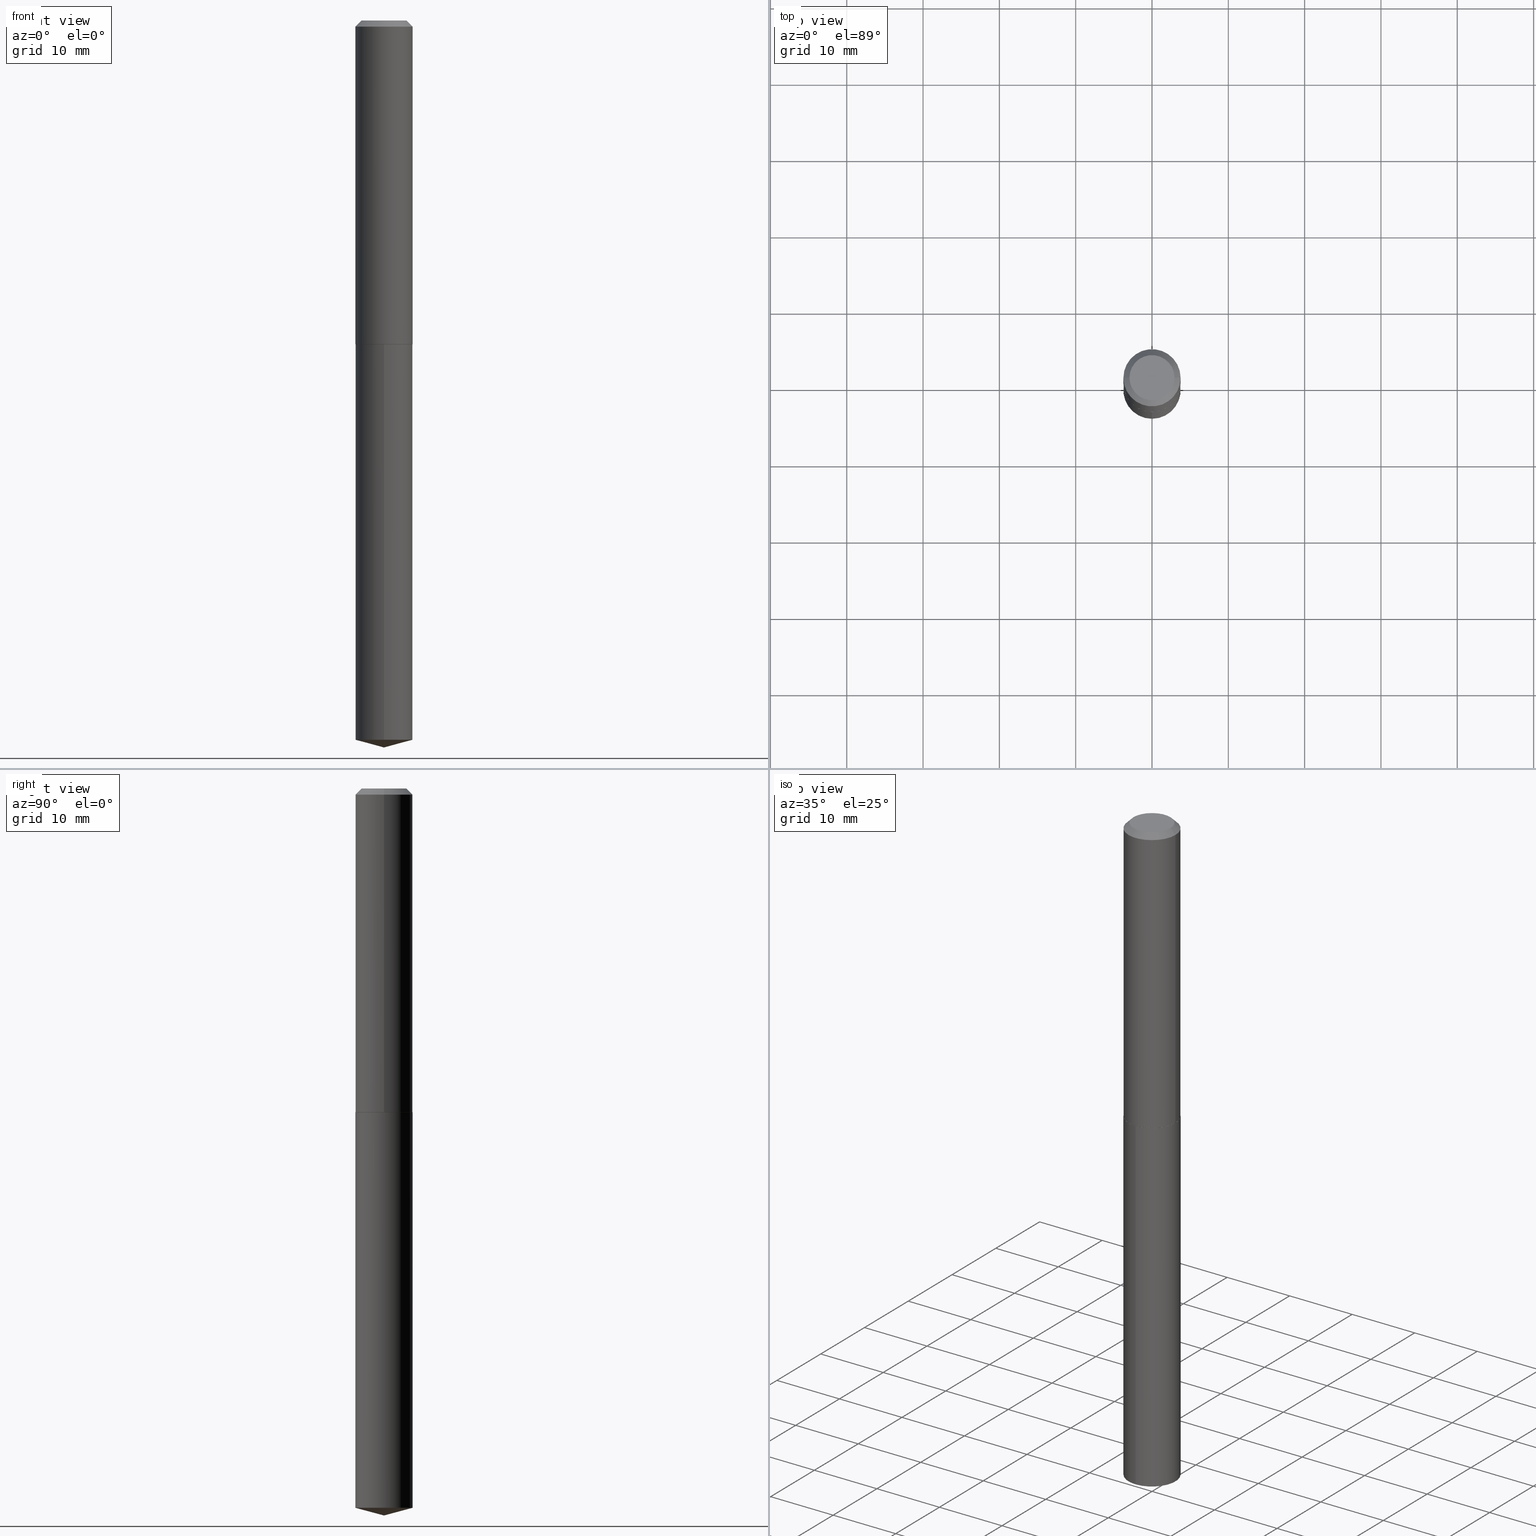
[diagram: canonical four-view strip — front | top / right | iso, engineering-drawing reading convention]
A machine part, canonical four-view strip (front | top / right | iso — engineering-drawing reading convention). The complete STEP part file that produces these views, byte-faithful:
ISO-10303-21;
HEADER;
FILE_DESCRIPTION (( 'STEP AP203' ),
    '1' );
FILE_NAME ('53213.STEP',
    '2024-04-22T19:26:09',
    ( '' ),
    ( '' ),
    'SwSTEP 2.0',
    'SolidWorks 2023',
    '' );
FILE_SCHEMA (( 'CONFIG_CONTROL_DESIGN' ));
ENDSEC;

DATA;
#1 = CARTESIAN_POINT ( 'NONE',  ( 9.073905152800398852E-29, -1.295499392540462134E-14, -3.710477494116410480 ) ) ;
#2 = ORIENTED_EDGE ( 'NONE', *, *, #236, .F. ) ;
#3 = CARTESIAN_POINT ( 'NONE',  ( 0.000000000000000000, 0.000000000000000000, 0.000000000000000000 ) ) ;
#4 = CARTESIAN_POINT ( 'NONE',  ( -0.1475000000000002143, -4.780977559952484031E-15, -1.669500000000000428 ) ) ;
#5 = VERTEX_POINT ( 'NONE', #71 ) ;
#6 = PERSON_AND_ORGANIZATION ( #185, #101 ) ;
#7 = VECTOR ( 'NONE', #368, 39.37007874015748143 ) ;
#8 = CLOSED_SHELL ( 'NONE', ( #23, #306, #95, #163, #140 ) ) ;
#9 = CARTESIAN_POINT ( 'NONE',  ( 0.1162499999999999922, -9.592825693755452120E-16, 3.061616997930326664E-19 ) ) ;
#10 = ADVANCED_FACE ( 'NONE', ( #261 ), #359, .T. ) ;
#11 = FACE_OUTER_BOUND ( 'NONE', #60, .T. ) ;
#12 = SECURITY_CLASSIFICATION_LEVEL ( 'unclassified' ) ;
#13 = LINE ( 'NONE', #69, #136 ) ;
#14 = DIRECTION ( 'NONE',  ( -2.438088387897960049E-29, 3.491481338843145188E-15, 1.000000000000000000 ) ) ;
#15 = CC_DESIGN_PERSON_AND_ORGANIZATION_ASSIGNMENT ( #6, #107, ( #173 ) ) ;
#16 = DESIGN_CONTEXT ( 'detailed design', #145, 'design' ) ;
#17 = CARTESIAN_POINT ( 'NONE',  ( 4.082710171926086683E-29, -5.829028095198632341E-15, -1.669500000000000428 ) ) ;
#18 = DIRECTION ( 'NONE',  ( -2.445492420700299063E-29, 3.491447521513378388E-15, 1.000000000000000000 ) ) ;
#19 = DIRECTION ( 'NONE',  ( -2.445468806185136877E-29, 3.491481338843145188E-15, 1.000000000000000000 ) ) ;
#20 = VECTOR ( 'NONE', #203, 39.37007874015748143 ) ;
#21 = FACE_OUTER_BOUND ( 'NONE', #265, .T. ) ;
#22 = SECURITY_CLASSIFICATION ( '', '', #12 ) ;
#23 = ADVANCED_FACE ( 'NONE', ( #267 ), #134, .T. ) ;
#24 = DIRECTION ( 'NONE',  ( -2.445492420700299063E-29, 3.491447521513378388E-15, 1.000000000000000000 ) ) ;
#25 = CARTESIAN_POINT ( 'NONE',  ( 0.1470000000000002416, -6.857269349487938175E-15, -1.670000000000000595 ) ) ;
#26 = DIRECTION ( 'NONE',  ( -6.982962677686265922E-15, -1.000000000000000000, 3.704200669375272254E-15 ) ) ;
#27 = CIRCLE ( 'NONE', #184, 0.1162499999999999922 ) ;
#28 = PERSON_AND_ORGANIZATION_ROLE ( 'design_owner' ) ;
#29 = EDGE_CURVE ( 'NONE', #5, #380, #103, .T. ) ;
#30 = DIRECTION ( 'NONE',  ( -2.445468806185136597E-29, 3.491481338843145583E-15, 1.000000000000000000 ) ) ;
#31 = ORIENTED_EDGE ( 'NONE', *, *, #369, .T. ) ;
#32 = DIRECTION ( 'NONE',  ( -2.445468806185136597E-29, 3.491481338843145583E-15, 1.000000000000000000 ) ) ;
#33 = LOCAL_TIME ( 15, 26, 9.000000000000000000, #240 ) ;
#34 = ADVANCED_FACE ( 'NONE', ( #97 ), #238, .T. ) ;
#35 = ORIENTED_EDGE ( 'NONE', *, *, #301, .T. ) ;
#36 = ORIENTED_EDGE ( 'NONE', *, *, #353, .F. ) ;
#37 = VERTEX_POINT ( 'NONE', #289 ) ;
#38 = CC_DESIGN_APPROVAL ( #119, ( #312 ) ) ;
#39 = DIRECTION ( 'NONE',  ( 2.438088387897960049E-29, -3.491481338843145188E-15, -1.000000000000000000 ) ) ;
#40 = PERSON_AND_ORGANIZATION ( #185, #101 ) ;
#41 = LINE ( 'NONE', #116, #382 ) ;
#42 = ADVANCED_FACE ( 'NONE', ( #235 ), #228, .F. ) ;
#43 = PERSON_AND_ORGANIZATION_ROLE ( 'classification_officer' ) ;
#44 = ORIENTED_EDGE ( 'NONE', *, *, #112, .T. ) ;
#45 = VERTEX_POINT ( 'NONE', #345 ) ;
#46 = DATE_AND_TIME ( #264, #33 ) ;
#47 = ADVANCED_FACE ( 'NONE', ( #139 ), #339, .F. ) ;
#48 = APPROVAL_PERSON_ORGANIZATION ( #229, #259, #317 ) ;
#49 = CARTESIAN_POINT ( 'NONE',  ( -0.1475000000000001033, 1.048050535246148508E-15, -7.255429258125991787E-30 ) ) ;
#50 = DIRECTION ( 'NONE',  ( -2.445468806185136597E-29, 3.491481338843145583E-15, 1.000000000000000000 ) ) ;
#51 = APPROVAL_STATUS ( 'not_yet_approved' ) ;
#52 = CARTESIAN_POINT ( 'NONE',  ( 4.083932906329178363E-29, -5.830773835868053845E-15, -1.670000000000000151 ) ) ;
#53 = CIRCLE ( 'NONE', #150, 0.1474999999999999922 ) ;
#54 = DIRECTION ( 'NONE',  ( 6.982962677686265922E-15, 1.000000000000000000, -3.491447521513378388E-15 ) ) ;
#55 = DIRECTION ( 'NONE',  ( 0.000000000000000000, 0.000000000000000000, 1.000000000000000000 ) ) ;
#56 = CARTESIAN_POINT ( 'NONE',  ( 4.082710171926086683E-29, -5.829028095198632341E-15, -1.669500000000000428 ) ) ;
#57 = PRODUCT_RELATED_PRODUCT_CATEGORY ( 'detail', '', ( #275 ) ) ;
#58 = CIRCLE ( 'NONE', #108, 0.1470000000000002416 ) ;
#59 = CARTESIAN_POINT ( 'NONE',  ( 0.1475000000000002143, -6.859015090157358101E-15, -1.669500000000000428 ) ) ;
#60 = EDGE_LOOP ( 'NONE', ( #288, #171, #161, #337 ) ) ;
#61 = ADVANCED_FACE ( 'NONE', ( #11 ), #172, .T. ) ;
#62 = FACE_OUTER_BOUND ( 'NONE', #243, .T. ) ;
#63 = EDGE_LOOP ( 'NONE', ( #364, #279, #96, #342 ) ) ;
#64 = VECTOR ( 'NONE', #230, 39.37007874015748143 ) ;
#65 = EDGE_LOOP ( 'NONE', ( #350, #278, #141, #258 ) ) ;
#66 = EDGE_CURVE ( 'NONE', #387, #72, #231, .T. ) ;
#67 = DIRECTION ( 'NONE',  ( 1.000000000000000000, -6.982962677686265922E-15, 4.876176775795935793E-29 ) ) ;
#68 = CIRCLE ( 'NONE', #239, 0.1475000000000002143 ) ;
#69 = CARTESIAN_POINT ( 'NONE',  ( 9.170517705145478569E-29, -1.309304115555659348E-14, -3.750000000000000000 ) ) ;
#70 = CARTESIAN_POINT ( 'NONE',  ( 1.916750892039908072E-29, -8.934301828670308396E-15, -1.670000000000000595 ) ) ;
#71 = CARTESIAN_POINT ( 'NONE',  ( -0.1470000000000002416, -4.783626787126595232E-15, -1.670000000000000595 ) ) ;
#72 = VERTEX_POINT ( 'NONE', #311 ) ;
#73 = AXIS2_PLACEMENT_3D ( 'NONE', #294, #272, #250 ) ;
#74 = LINE ( 'NONE', #241, #341 ) ;
#75 = CARTESIAN_POINT ( 'NONE',  ( 4.083932906329178363E-29, -5.830773835868053845E-15, -1.670000000000000151 ) ) ;
#76 = ORIENTED_EDGE ( 'NONE', *, *, #112, .F. ) ;
#77 = SHAPE_DEFINITION_REPRESENTATION ( #386, #338 ) ;
#78 = DIRECTION ( 'NONE',  ( -6.745023994389845444E-15, -0.9659258262890685343, 0.2588190451025198513 ) ) ;
#79 = EDGE_CURVE ( 'NONE', #123, #375, #41, .T. ) ;
#80 = CARTESIAN_POINT ( 'NONE',  ( -7.487088864773370432E-48, 1.068957861474250935E-33, 3.061616997868404646E-19 ) ) ;
#81 = ORIENTED_EDGE ( 'NONE', *, *, #186, .T. ) ;
#82 = DIRECTION ( 'NONE',  ( 2.445492420700298503E-29, -3.491447521513378388E-15, -1.000000000000000000 ) ) ;
#83 = CC_DESIGN_SECURITY_CLASSIFICATION ( #22, ( #173 ) ) ;
#84 = EDGE_CURVE ( 'NONE', #37, #375, #120, .T. ) ;
#85 = CYLINDRICAL_SURFACE ( 'NONE', #334, 0.1474999999999999922 ) ;
#86 = CC_DESIGN_DATE_AND_TIME_ASSIGNMENT ( #313, #170, ( #312 ) ) ;
#87 = DIRECTION ( 'NONE',  ( -6.982962677686265922E-15, -1.000000000000000000, 3.704200669375272254E-15 ) ) ;
#88 = PERSON_AND_ORGANIZATION ( #185, #101 ) ;
#89 = AXIS2_PLACEMENT_3D ( 'NONE', #191, #223, #361 ) ;
#90 = DIRECTION ( 'NONE',  ( -2.445492420700299063E-29, 3.491447521513378388E-15, 1.000000000000000000 ) ) ;
#91 = ORIENTED_EDGE ( 'NONE', *, *, #132, .T. ) ;
#92 = VERTEX_POINT ( 'NONE', #25 ) ;
#93 = ORIENTED_EDGE ( 'NONE', *, *, #84, .F. ) ;
#94 = AXIS2_PLACEMENT_3D ( 'NONE', #162, #32, #363 ) ;
#95 = ADVANCED_FACE ( 'NONE', ( #378 ), #232, .T. ) ;
#96 = ORIENTED_EDGE ( 'NONE', *, *, #353, .T. ) ;
#97 = FACE_OUTER_BOUND ( 'NONE', #257, .T. ) ;
#98 = MANIFOLD_SOLID_BREP ( 'Body-Move/Copy2[1]', #8 ) ;
#99 = DATE_TIME_ROLE ( 'classification_date' ) ;
#100 = DIRECTION ( 'NONE',  ( 1.000000000000000000, -6.982962677686265922E-15, 0.000000000000000000 ) ) ;
#101 = ORGANIZATION ( 'UNSPECIFIED', 'UNSPECIFIED', '' ) ;
#102 = DIRECTION ( 'NONE',  ( 1.000000000000000000, -6.982962677686265922E-15, 0.000000000000000000 ) ) ;
#103 = LINE ( 'NONE', #4, #7 ) ;
#104 = EDGE_LOOP ( 'NONE', ( #357, #117, #81, #251 ) ) ;
#105 = DATE_AND_TIME ( #131, #210 ) ;
#106 = CARTESIAN_POINT ( 'NONE',  ( 0.000000000000000000, 0.000000000000000000, 0.000000000000000000 ) ) ;
#107 = PERSON_AND_ORGANIZATION_ROLE ( 'creator' ) ;
#108 = AXIS2_PLACEMENT_3D ( 'NONE', #325, #247, #152 ) ;
#109 = LINE ( 'NONE', #205, #64 ) ;
#110 = CARTESIAN_POINT ( 'NONE',  ( 4.083932906329178363E-29, -5.830773835868053845E-15, -1.670000000000000151 ) ) ;
#111 = CARTESIAN_POINT ( 'NONE',  ( 9.073905152800398852E-29, -1.295499392540462134E-14, -3.710477494116410480 ) ) ;
#112 = EDGE_CURVE ( 'NONE', #375, #37, #53, .T. ) ;
#113 = LOCAL_TIME ( 15, 26, 9.000000000000000000, #142 ) ;
#114 = EDGE_CURVE ( 'NONE', #380, #216, #255, .T. ) ;
#115 =( CONVERSION_BASED_UNIT ( 'INCH', #295 ) LENGTH_UNIT ( ) NAMED_UNIT ( #299 ) );
#116 = CARTESIAN_POINT ( 'NONE',  ( 1.048050535246188542E-15, 0.1474999999999941636, -1.670000000000000817 ) ) ;
#117 = ORIENTED_EDGE ( 'NONE', *, *, #159, .F. ) ;
#118 = APPLICATION_CONTEXT ( 'configuration controlled 3d designs of mechanical parts and assemblies' ) ;
#119 = APPROVAL ( #217, 'UNSPECIFIED' ) ;
#120 = CIRCLE ( 'NONE', #390, 0.1474999999999999922 ) ;
#121 = VECTOR ( 'NONE', #356, 39.37007874015748143 ) ;
#122 = APPROVAL_ROLE ( '' ) ;
#123 = VERTEX_POINT ( 'NONE', #323 ) ;
#124 = DIRECTION ( 'NONE',  ( -2.445492420700299063E-29, 3.491447521513378388E-15, 1.000000000000000000 ) ) ;
#125 = VERTEX_POINT ( 'NONE', #209 ) ;
#126 = CC_DESIGN_PERSON_AND_ORGANIZATION_ASSIGNMENT ( #351, #346, ( #312 ) ) ;
#127 = AXIS2_PLACEMENT_3D ( 'NONE', #80, #149, #148 ) ;
#128 = DIRECTION ( 'NONE',  ( -2.445468806185136597E-29, 3.491481338843145583E-15, 1.000000000000000000 ) ) ;
#129 = ORIENTED_EDGE ( 'NONE', *, *, #373, .T. ) ;
#130 = CARTESIAN_POINT ( 'NONE',  ( 7.642090019328604414E-31, -1.091087918388490513E-16, -0.03125000000000021511 ) ) ;
#131 = CALENDAR_DATE ( 2024, 22, 4 ) ;
#132 = EDGE_CURVE ( 'NONE', #45, #123, #348, .T. ) ;
#133 = DIRECTION ( 'NONE',  ( 6.863315791527699781E-15, 0.9659258262890704216, 0.2588190451025130789 ) ) ;
#134 = CYLINDRICAL_SURFACE ( 'NONE', #190, 0.1474999999999999922 ) ;
#135 = ORIENTED_EDGE ( 'NONE', *, *, #333, .F. ) ;
#136 = VECTOR ( 'NONE', #78, 39.37007874015748143 ) ;
#137 = DIRECTION ( 'NONE',  ( 1.000000000000000000, -6.982962677686265922E-15, 0.000000000000000000 ) ) ;
#138 = CALENDAR_DATE ( 2024, 22, 4 ) ;
#139 = FACE_OUTER_BOUND ( 'NONE', #270, .T. ) ;
#140 = ADVANCED_FACE ( 'NONE', ( #21 ), #385, .F. ) ;
#141 = ORIENTED_EDGE ( 'NONE', *, *, #189, .F. ) ;
#142 = COORDINATED_UNIVERSAL_TIME_OFFSET ( 5, 0, .BEHIND. ) ;
#143 = DIRECTION ( 'NONE',  ( -2.445468806185136597E-29, 3.491481338843145583E-15, 1.000000000000000000 ) ) ;
#144 = CARTESIAN_POINT ( 'NONE',  ( -8.710867202004330630E-28, 1.243655791584935141E-13, 35.62007874015748143 ) ) ;
#145 = APPLICATION_CONTEXT ( 'configuration controlled 3d designs of mechanical parts and assemblies' ) ;
#146 = VECTOR ( 'NONE', #90, 39.37007874015748143 ) ;
#147 =( NAMED_UNIT ( * ) SI_UNIT ( $, .STERADIAN. ) SOLID_ANGLE_UNIT ( ) );
#148 = DIRECTION ( 'NONE',  ( 1.000000000000000000, -6.982962677686266711E-15, 4.876177086992617819E-29 ) ) ;
#149 = DIRECTION ( 'NONE',  ( -2.445468806185136597E-29, 3.491481338843145583E-15, 1.000000000000000000 ) ) ;
#150 = AXIS2_PLACEMENT_3D ( 'NONE', #110, #24, #242 ) ;
#151 = AXIS2_PLACEMENT_3D ( 'NONE', #111, #214, #355 ) ;
#152 = DIRECTION ( 'NONE',  ( 1.000000000000000000, -6.982962677686268288E-15, 0.000000000000000000 ) ) ;
#153 = PERSON_AND_ORGANIZATION ( #185, #101 ) ;
#154 = EDGE_CURVE ( 'NONE', #5, #92, #58, .T. ) ;
#155 = LINE ( 'NONE', #277, #146 ) ;
#156 = VERTEX_POINT ( 'NONE', #244 ) ;
#157 = ORIENTED_EDGE ( 'NONE', *, *, #154, .F. ) ;
#158 = APPROVAL_PERSON_ORGANIZATION ( #233, #266, #169 ) ;
#159 = EDGE_CURVE ( 'NONE', #156, #387, #256, .T. ) ;
#160 = CARTESIAN_POINT ( 'NONE',  ( 0.1475000000000002143, -6.859015090157358101E-15, -1.669500000000000428 ) ) ;
#161 = ORIENTED_EDGE ( 'NONE', *, *, #204, .T. ) ;
#162 = CARTESIAN_POINT ( 'NONE',  ( 7.642090019328604414E-31, -1.091087918388490513E-16, -0.03125000000000021511 ) ) ;
#163 = ADVANCED_FACE ( 'NONE', ( #178 ), #85, .T. ) ;
#164 = ORIENTED_EDGE ( 'NONE', *, *, #322, .T. ) ;
#165 =( GEOMETRIC_REPRESENTATION_CONTEXT ( 3 ) GLOBAL_UNCERTAINTY_ASSIGNED_CONTEXT ( ( #318 ) ) GLOBAL_UNIT_ASSIGNED_CONTEXT ( ( #115, #276, #147 ) ) REPRESENTATION_CONTEXT ( 'NONE', 'WORKASPACE' ) );
#166 = DATE_AND_TIME ( #344, #113 ) ;
#167 = DIRECTION ( 'NONE',  ( -1.000000000000000000, 6.982962677686265922E-15, -4.876176775795935793E-29 ) ) ;
#168 = CC_DESIGN_DATE_AND_TIME_ASSIGNMENT ( #105, #99, ( #22 ) ) ;
#169 = APPROVAL_ROLE ( '' ) ;
#170 = DATE_TIME_ROLE ( 'creation_date' ) ;
#171 = ORIENTED_EDGE ( 'NONE', *, *, #154, .T. ) ;
#172 = CONICAL_SURFACE ( 'NONE', #179, 0.1475000000000002143, 0.7853981633972434429 ) ;
#173 = PRODUCT_DEFINITION_FORMATION_WITH_SPECIFIED_SOURCE ( 'ANY', '', #275, .NOT_KNOWN. ) ;
#174 = EDGE_LOOP ( 'NONE', ( #331, #329, #35, #76 ) ) ;
#175 = PERSON_AND_ORGANIZATION_ROLE ( 'design_supplier' ) ;
#176 = DIRECTION ( 'NONE',  ( 1.000000000000000000, -6.982962677686265922E-15, 4.876176775795935232E-29 ) ) ;
#177 = APPROVAL_DATE_TIME ( #46, #266 ) ;
#178 = FACE_OUTER_BOUND ( 'NONE', #174, .T. ) ;
#179 = AXIS2_PLACEMENT_3D ( 'NONE', #284, #370, #100 ) ;
#180 = AXIS2_PLACEMENT_3D ( 'NONE', #234, #208, #137 ) ;
#181 = DIRECTION ( 'NONE',  ( 1.000000000000000000, 0.000000000000000000, 0.000000000000000000 ) ) ;
#182 = DIRECTION ( 'NONE',  ( -2.445468806185136597E-29, 3.491481338843145583E-15, 1.000000000000000000 ) ) ;
#183 = CARTESIAN_POINT ( 'NONE',  ( -0.1474999999999999922, 9.208782031198752786E-16, -0.03125000000000021511 ) ) ;
#184 = AXIS2_PLACEMENT_3D ( 'NONE', #192, #196, #367 ) ;
#185 = PERSON ( 'UNSPECIFIED', 'UNSPECIFIED', 'UNSPECIFIED', ('UNSPECIFIED'), ('UNSPECIFIED'), ('UNSPECIFIED') ) ;
#186 = EDGE_CURVE ( 'NONE', #156, #389, #328, .T. ) ;
#187 = ORIENTED_EDGE ( 'NONE', *, *, #322, .F. ) ;
#188 = EDGE_LOOP ( 'NONE', ( #2, #157 ) ) ;
#189 = EDGE_CURVE ( 'NONE', #216, #380, #68, .T. ) ;
#190 = AXIS2_PLACEMENT_3D ( 'NONE', #349, #197, #281 ) ;
#191 = CARTESIAN_POINT ( 'NONE',  ( 7.642090019328604414E-31, -1.091087918388490513E-16, -0.03125000000000021511 ) ) ;
#192 = CARTESIAN_POINT ( 'NONE',  ( -7.487088864773370432E-48, 1.068957861474250935E-33, 3.061616997868404646E-19 ) ) ;
#193 = CIRCLE ( 'NONE', #180, 0.1474999999999999922 ) ;
#194 = ORIENTED_EDGE ( 'NONE', *, *, #373, .F. ) ;
#195 = FACE_OUTER_BOUND ( 'NONE', #63, .T. ) ;
#196 = DIRECTION ( 'NONE',  ( -2.445468806185136597E-29, 3.491481338843145583E-15, 1.000000000000000000 ) ) ;
#197 = DIRECTION ( 'NONE',  ( -2.445492420700299063E-29, 3.491447521513378388E-15, 1.000000000000000000 ) ) ;
#198 = AXIS2_PLACEMENT_3D ( 'NONE', #106, #50, #176 ) ;
#199 = LOCAL_TIME ( 15, 26, 9.000000000000000000, #347 ) ;
#200 = CARTESIAN_POINT ( 'NONE',  ( 1.048050535246238832E-15, 0.1474999999999941636, -1.670000000000000817 ) ) ;
#201 = CARTESIAN_POINT ( 'NONE',  ( 0.1474999999999999922, -1.121032246510149746E-15, -0.03125000000000021511 ) ) ;
#202 = APPROVAL_DATE_TIME ( #166, #119 ) ;
#203 = DIRECTION ( 'NONE',  ( 0.7071067811865451302, -7.319954787623248157E-15, -0.7071067811865499042 ) ) ;
#204 = EDGE_CURVE ( 'NONE', #92, #216, #220, .T. ) ;
#205 = CARTESIAN_POINT ( 'NONE',  ( 0.1475000000000001033, -1.029986994958724971E-15, 7.192360744299009779E-30 ) ) ;
#206 = CIRCLE ( 'NONE', #308, 0.1470000000000002416 ) ;
#207 = DIRECTION ( 'NONE',  ( -6.982962677686265133E-15, -1.000000000000000000, 3.510303681827577719E-15 ) ) ;
#208 = DIRECTION ( 'NONE',  ( -2.445468806185136597E-29, 3.491481338843145583E-15, 1.000000000000000000 ) ) ;
#209 = CARTESIAN_POINT ( 'NONE',  ( 9.170596577626120646E-29, -1.309292820567517172E-14, -3.750000000000000000 ) ) ;
#210 = LOCAL_TIME ( 15, 26, 9.000000000000000000, #315 ) ;
#211 = CARTESIAN_POINT ( 'NONE',  ( 0.000000000000000000, 0.000000000000000000, 0.000000000000000000 ) ) ;
#212 = DIRECTION ( 'NONE',  ( -2.445492420700299063E-29, 3.491447521513378388E-15, 1.000000000000000000 ) ) ;
#213 = FACE_OUTER_BOUND ( 'NONE', #221, .T. ) ;
#214 = DIRECTION ( 'NONE',  ( -2.445492420700299063E-29, 3.491447521513378388E-15, 1.000000000000000000 ) ) ;
#215 = EDGE_CURVE ( 'NONE', #389, #72, #366, .T. ) ;
#216 = VERTEX_POINT ( 'NONE', #59 ) ;
#217 = APPROVAL_STATUS ( 'not_yet_approved' ) ;
#218 = CARTESIAN_POINT ( 'NONE',  ( 4.083932906329178924E-29, -5.830773835868054634E-15, -1.670000000000000595 ) ) ;
#219 = ORIENTED_EDGE ( 'NONE', *, *, #159, .T. ) ;
#220 = LINE ( 'NONE', #160, #121 ) ;
#221 = EDGE_LOOP ( 'NONE', ( #194, #302, #314 ) ) ;
#222 = CC_DESIGN_PERSON_AND_ORGANIZATION_ASSIGNMENT ( #88, #28, ( #275 ) ) ;
#223 = DIRECTION ( 'NONE',  ( 2.445468806185136597E-29, -3.491481338843145583E-15, -1.000000000000000000 ) ) ;
#224 = CONICAL_SURFACE ( 'NONE', #89, 0.1474999999999999922, 0.7853981633974449483 ) ;
#225 = ORIENTED_EDGE ( 'NONE', *, *, #189, .T. ) ;
#226 = ORIENTED_EDGE ( 'NONE', *, *, #388, .T. ) ;
#227 = ADVANCED_FACE ( 'NONE', ( #62 ), #224, .T. ) ;
#228 = PLANE ( 'NONE',  #245 ) ;
#229 = PERSON_AND_ORGANIZATION ( #185, #101 ) ;
#230 = DIRECTION ( 'NONE',  ( -2.445468806185136877E-29, 3.491481338843145188E-15, 1.000000000000000000 ) ) ;
#231 = LINE ( 'NONE', #201, #20 ) ;
#232 = CONICAL_SURFACE ( 'NONE', #273, 146.9311341562576274, 1.308996938995751647 ) ;
#233 = PERSON_AND_ORGANIZATION ( #185, #101 ) ;
#234 = CARTESIAN_POINT ( 'NONE',  ( 7.642090019328604414E-31, -1.091087918388490513E-16, -0.03125000000000021511 ) ) ;
#235 = FACE_OUTER_BOUND ( 'NONE', #188, .T. ) ;
#236 = EDGE_CURVE ( 'NONE', #92, #5, #206, .T. ) ;
#237 = MANIFOLD_SOLID_BREP ( 'Body-Move/Copy2[2]', #307 ) ;
#238 = CYLINDRICAL_SURFACE ( 'NONE', #198, 0.1475000000000001033 ) ;
#239 = AXIS2_PLACEMENT_3D ( 'NONE', #56, #182, #296 ) ;
#240 = COORDINATED_UNIVERSAL_TIME_OFFSET ( 5, 0, .BEHIND. ) ;
#241 = CARTESIAN_POINT ( 'NONE',  ( 9.170597269244674766E-29, -1.309292820567517172E-14, -3.750000000000000000 ) ) ;
#242 = DIRECTION ( 'NONE',  ( -6.982962677686265922E-15, -1.000000000000000000, 3.704200669375272254E-15 ) ) ;
#243 = EDGE_LOOP ( 'NONE', ( #187, #254, #226, #332 ) ) ;
#244 = CARTESIAN_POINT ( 'NONE',  ( -0.1162499999999999922, 8.663238072004519116E-16, 3.061616997809728783E-19 ) ) ;
#245 = AXIS2_PLACEMENT_3D ( 'NONE', #70, #14, #67 ) ;
#246 = AXIS2_PLACEMENT_3D ( 'NONE', #3, #128, #283 ) ;
#247 = DIRECTION ( 'NONE',  ( -2.445468806185136597E-29, 3.491481338843145583E-15, 1.000000000000000000 ) ) ;
#248 = EDGE_CURVE ( 'NONE', #123, #45, #298, .T. ) ;
#249 = APPLICATION_PROTOCOL_DEFINITION ( 'international standard', 'config_control_design', 1994, #145 ) ;
#250 = DIRECTION ( 'NONE',  ( 1.000000000000000000, -6.982962677686265922E-15, 0.000000000000000000 ) ) ;
#251 = ORIENTED_EDGE ( 'NONE', *, *, #215, .T. ) ;
#252 = ORIENTED_EDGE ( 'NONE', *, *, #79, .T. ) ;
#253 = ORIENTED_EDGE ( 'NONE', *, *, #301, .F. ) ;
#254 = ORIENTED_EDGE ( 'NONE', *, *, #66, .T. ) ;
#255 = CIRCLE ( 'NONE', #73, 0.1475000000000002143 ) ;
#256 = CIRCLE ( 'NONE', #127, 0.1162499999999999922 ) ;
#257 = EDGE_LOOP ( 'NONE', ( #225, #31, #290, #36 ) ) ;
#258 = ORIENTED_EDGE ( 'NONE', *, *, #204, .F. ) ;
#259 = APPROVAL ( #374, 'UNSPECIFIED' ) ;
#260 = COORDINATED_UNIVERSAL_TIME_OFFSET ( 5, 0, .BEHIND. ) ;
#261 = FACE_OUTER_BOUND ( 'NONE', #104, .T. ) ;
#262 = AXIS2_PLACEMENT_3D ( 'NONE', #130, #286, #371 ) ;
#263 = CC_DESIGN_APPROVAL ( #266, ( #22 ) ) ;
#264 = CALENDAR_DATE ( 2024, 22, 4 ) ;
#265 = EDGE_LOOP ( 'NONE', ( #300, #44 ) ) ;
#266 = APPROVAL ( #51, 'UNSPECIFIED' ) ;
#267 = FACE_OUTER_BOUND ( 'NONE', #305, .T. ) ;
#268 = LINE ( 'NONE', #49, #383 ) ;
#269 = AXIS2_PLACEMENT_3D ( 'NONE', #52, #82, #54 ) ;
#270 = EDGE_LOOP ( 'NONE', ( #219, #164 ) ) ;
#271 = DIRECTION ( 'NONE',  ( -6.982962677686265922E-15, -1.000000000000000000, 3.704200669375272254E-15 ) ) ;
#272 = DIRECTION ( 'NONE',  ( -2.445468806185136597E-29, 3.491481338843145583E-15, 1.000000000000000000 ) ) ;
#273 = AXIS2_PLACEMENT_3D ( 'NONE', #144, #320, #207 ) ;
#274 = CONICAL_SURFACE ( 'NONE', #316, 0.1475000000000002143, 0.7853981633972434429 ) ;
#275 = PRODUCT ( '53213', '53213', '', ( #358 ) ) ;
#276 =( NAMED_UNIT ( * ) PLANE_ANGLE_UNIT ( ) SI_UNIT ( $, .RADIAN. ) );
#277 = CARTESIAN_POINT ( 'NONE',  ( -1.029986994958683358E-15, -0.1475000000000058209, -1.669999999999999707 ) ) ;
#278 = ORIENTED_EDGE ( 'NONE', *, *, #29, .T. ) ;
#279 = ORIENTED_EDGE ( 'NONE', *, *, #114, .T. ) ;
#280 = VECTOR ( 'NONE', #292, 39.37007874015748143 ) ;
#281 = DIRECTION ( 'NONE',  ( -6.982962677686265922E-15, -1.000000000000000000, 3.704200669375272254E-15 ) ) ;
#282 = PERSON_AND_ORGANIZATION ( #185, #101 ) ;
#283 = DIRECTION ( 'NONE',  ( 1.000000000000000000, -6.982962677686265922E-15, 4.876176775795935232E-29 ) ) ;
#284 = CARTESIAN_POINT ( 'NONE',  ( 4.082710171926086683E-29, -5.829028095198632341E-15, -1.669500000000000428 ) ) ;
#285 = CARTESIAN_POINT ( 'NONE',  ( -0.1475000000000002143, -4.780977559952484031E-15, -1.669500000000000428 ) ) ;
#286 = DIRECTION ( 'NONE',  ( 2.445468806185136597E-29, -3.491481338843145583E-15, -1.000000000000000000 ) ) ;
#287 = APPROVAL_PERSON_ORGANIZATION ( #153, #119, #122 ) ;
#288 = ORIENTED_EDGE ( 'NONE', *, *, #29, .F. ) ;
#289 = CARTESIAN_POINT ( 'NONE',  ( -1.029986994958683358E-15, -0.1475000000000058209, -1.669999999999999707 ) ) ;
#290 = ORIENTED_EDGE ( 'NONE', *, *, #388, .F. ) ;
#291 = CALENDAR_DATE ( 2024, 22, 4 ) ;
#292 = DIRECTION ( 'NONE',  ( -0.7071067811865451302, 2.468850131082231817E-15, -0.7071067811865499042 ) ) ;
#293 = AXIS2_PLACEMENT_3D ( 'NONE', #1, #124, #87 ) ;
#294 = CARTESIAN_POINT ( 'NONE',  ( 4.082710171926086683E-29, -5.829028095198632341E-15, -1.669500000000000428 ) ) ;
#295 = LENGTH_MEASURE_WITH_UNIT ( LENGTH_MEASURE( 0.02539999999999999897 ), #372 );
#296 = DIRECTION ( 'NONE',  ( 1.000000000000000000, -6.982962677686265922E-15, 0.000000000000000000 ) ) ;
#297 = DIRECTION ( 'NONE',  ( -2.445492420700299063E-29, 3.491447521513378388E-15, 1.000000000000000000 ) ) ;
#298 = CIRCLE ( 'NONE', #293, 0.1474999999999999922 ) ;
#299 = DIMENSIONAL_EXPONENTS ( 1.000000000000000000, 0.000000000000000000, 0.000000000000000000, 0.000000000000000000, 0.000000000000000000, 0.000000000000000000, 0.000000000000000000 ) ;
#300 = ORIENTED_EDGE ( 'NONE', *, *, #84, .T. ) ;
#301 = EDGE_CURVE ( 'NONE', #45, #37, #155, .T. ) ;
#302 = ORIENTED_EDGE ( 'NONE', *, *, #333, .T. ) ;
#303 = AXIS2_PLACEMENT_3D ( 'NONE', #310, #39, #167 ) ;
#304 = DIRECTION ( 'NONE',  ( 1.000000000000000000, -6.982962677686268288E-15, 0.000000000000000000 ) ) ;
#305 = EDGE_LOOP ( 'NONE', ( #91, #252, #93, #253 ) ) ;
#306 = ADVANCED_FACE ( 'NONE', ( #213 ), #354, .T. ) ;
#307 = CLOSED_SHELL ( 'NONE', ( #227, #34, #365, #42, #61, #327, #10, #47 ) ) ;
#308 = AXIS2_PLACEMENT_3D ( 'NONE', #218, #30, #304 ) ;
#309 = CYLINDRICAL_SURFACE ( 'NONE', #246, 0.1475000000000001033 ) ;
#310 = CARTESIAN_POINT ( 'NONE',  ( -3.743544432386685216E-48, 5.344789307371254673E-34, 1.530808498934202323E-19 ) ) ;
#311 = CARTESIAN_POINT ( 'NONE',  ( 0.1474999999999999922, -1.139095786797573283E-15, -0.03125000000000021511 ) ) ;
#312 = PRODUCT_DEFINITION ( 'UNKNOWN', '', #173, #16 ) ;
#313 = DATE_AND_TIME ( #138, #360 ) ;
#314 = ORIENTED_EDGE ( 'NONE', *, *, #132, .F. ) ;
#315 = COORDINATED_UNIVERSAL_TIME_OFFSET ( 5, 0, .BEHIND. ) ;
#316 = AXIS2_PLACEMENT_3D ( 'NONE', #17, #143, #102 ) ;
#317 = APPROVAL_ROLE ( '' ) ;
#318 = UNCERTAINTY_MEASURE_WITH_UNIT (LENGTH_MEASURE( 1.000000000000000082E-05 ), #115, 'distance_accuracy_value', 'NONE');
#319 = FACE_OUTER_BOUND ( 'NONE', #65, .T. ) ;
#320 = DIRECTION ( 'NONE',  ( -2.445492420700299063E-29, 3.491447521513378388E-15, 1.000000000000000000 ) ) ;
#321 = CARTESIAN_POINT ( 'NONE',  ( -0.1474999999999999922, -1.921017908272591621E-15, -0.03125000000000021511 ) ) ;
#322 = EDGE_CURVE ( 'NONE', #387, #156, #27, .T. ) ;
#323 = CARTESIAN_POINT ( 'NONE',  ( 1.048050535246238044E-15, 0.1474999999999870026, -3.710477494116410924 ) ) ;
#324 = CC_DESIGN_APPROVAL ( #259, ( #173 ) ) ;
#325 = CARTESIAN_POINT ( 'NONE',  ( 4.083932906329178924E-29, -5.830773835868054634E-15, -1.670000000000000595 ) ) ;
#326 = CARTESIAN_POINT ( 'NONE',  ( -8.710867202004330630E-28, 1.243655791584935141E-13, 35.62007874015748143 ) ) ;
#327 = ADVANCED_FACE ( 'NONE', ( #195 ), #309, .T. ) ;
#328 = LINE ( 'NONE', #183, #280 ) ;
#329 = ORIENTED_EDGE ( 'NONE', *, *, #248, .T. ) ;
#330 = AXIS2_PLACEMENT_3D ( 'NONE', #326, #297, #362 ) ;
#331 = ORIENTED_EDGE ( 'NONE', *, *, #79, .F. ) ;
#332 = ORIENTED_EDGE ( 'NONE', *, *, #186, .F. ) ;
#333 = EDGE_CURVE ( 'NONE', #125, #123, #74, .T. ) ;
#334 = AXIS2_PLACEMENT_3D ( 'NONE', #352, #212, #271 ) ;
#335 = ORIENTED_EDGE ( 'NONE', *, *, #248, .F. ) ;
#336 = CC_DESIGN_PERSON_AND_ORGANIZATION_ASSIGNMENT ( #282, #43, ( #22 ) ) ;
#337 = ORIENTED_EDGE ( 'NONE', *, *, #114, .F. ) ;
#338 = ADVANCED_BREP_SHAPE_REPRESENTATION ( '53213', ( #98, #237, #379 ), #165 ) ;
#339 = PLANE ( 'NONE',  #303 ) ;
#340 = DATE_AND_TIME ( #291, #199 ) ;
#341 = VECTOR ( 'NONE', #133, 39.37007874015748854 ) ;
#342 = ORIENTED_EDGE ( 'NONE', *, *, #215, .F. ) ;
#343 = CC_DESIGN_PERSON_AND_ORGANIZATION_ASSIGNMENT ( #40, #175, ( #173 ) ) ;
#344 = CALENDAR_DATE ( 2024, 22, 4 ) ;
#345 = CARTESIAN_POINT ( 'NONE',  ( -1.029986994958633266E-15, -0.1475000000000129263, -3.710477494116409591 ) ) ;
#346 = PERSON_AND_ORGANIZATION_ROLE ( 'creator' ) ;
#347 = COORDINATED_UNIVERSAL_TIME_OFFSET ( 5, 0, .BEHIND. ) ;
#348 = CIRCLE ( 'NONE', #151, 0.1474999999999999922 ) ;
#349 = CARTESIAN_POINT ( 'NONE',  ( 4.083932906329178363E-29, -5.830773835868053845E-15, -1.670000000000000151 ) ) ;
#350 = ORIENTED_EDGE ( 'NONE', *, *, #236, .T. ) ;
#351 = PERSON_AND_ORGANIZATION ( #185, #101 ) ;
#352 = CARTESIAN_POINT ( 'NONE',  ( 4.083932906329178363E-29, -5.830773835868053845E-15, -1.670000000000000151 ) ) ;
#353 = EDGE_CURVE ( 'NONE', #216, #72, #109, .T. ) ;
#354 = CONICAL_SURFACE ( 'NONE', #330, 146.9311341562576274, 1.308996938995751647 ) ;
#355 = DIRECTION ( 'NONE',  ( -6.982962677686265922E-15, -1.000000000000000000, 3.704200669375272254E-15 ) ) ;
#356 = DIRECTION ( 'NONE',  ( 0.7071067811864026886, -2.468850131080739687E-15, 0.7071067811866923458 ) ) ;
#357 = ORIENTED_EDGE ( 'NONE', *, *, #66, .F. ) ;
#358 = MECHANICAL_CONTEXT ( 'NONE', #118, 'mechanical' ) ;
#359 = CONICAL_SURFACE ( 'NONE', #262, 0.1474999999999999922, 0.7853981633974449483 ) ;
#360 = LOCAL_TIME ( 15, 26, 9.000000000000000000, #260 ) ;
#361 = DIRECTION ( 'NONE',  ( -1.000000000000000000, 6.982962677686265922E-15, 0.000000000000000000 ) ) ;
#362 = DIRECTION ( 'NONE',  ( -6.982962677686265133E-15, -1.000000000000000000, 3.510303681827577719E-15 ) ) ;
#363 = DIRECTION ( 'NONE',  ( 1.000000000000000000, -6.982962677686265922E-15, 0.000000000000000000 ) ) ;
#364 = ORIENTED_EDGE ( 'NONE', *, *, #369, .F. ) ;
#365 = ADVANCED_FACE ( 'NONE', ( #319 ), #274, .T. ) ;
#366 = CIRCLE ( 'NONE', #94, 0.1474999999999999922 ) ;
#367 = DIRECTION ( 'NONE',  ( 1.000000000000000000, -6.982962677686266711E-15, 4.876177086992617819E-29 ) ) ;
#368 = DIRECTION ( 'NONE',  ( -0.7071067811864026886, 7.493145998869830357E-15, 0.7071067811866923458 ) ) ;
#369 = EDGE_CURVE ( 'NONE', #380, #389, #268, .T. ) ;
#370 = DIRECTION ( 'NONE',  ( -2.445468806185136597E-29, 3.491481338843145583E-15, 1.000000000000000000 ) ) ;
#371 = DIRECTION ( 'NONE',  ( -1.000000000000000000, 6.982962677686265922E-15, 0.000000000000000000 ) ) ;
#372 =( LENGTH_UNIT ( ) NAMED_UNIT ( * ) SI_UNIT ( $, .METRE. ) );
#373 = EDGE_CURVE ( 'NONE', #125, #45, #13, .T. ) ;
#374 = APPROVAL_STATUS ( 'not_yet_approved' ) ;
#375 = VERTEX_POINT ( 'NONE', #200 ) ;
#376 = EDGE_LOOP ( 'NONE', ( #135, #129, #335 ) ) ;
#377 = APPROVAL_DATE_TIME ( #340, #259 ) ;
#378 = FACE_OUTER_BOUND ( 'NONE', #376, .T. ) ;
#379 = AXIS2_PLACEMENT_3D ( 'NONE', #211, #55, #181 ) ;
#380 = VERTEX_POINT ( 'NONE', #285 ) ;
#381 = DIRECTION ( 'NONE',  ( -2.445492420700299063E-29, 3.491447521513378388E-15, 1.000000000000000000 ) ) ;
#382 = VECTOR ( 'NONE', #381, 39.37007874015748143 ) ;
#383 = VECTOR ( 'NONE', #19, 39.37007874015748143 ) ;
#384 = APPLICATION_PROTOCOL_DEFINITION ( 'international standard', 'config_control_design', 1994, #118 ) ;
#385 = PLANE ( 'NONE',  #269 ) ;
#386 = PRODUCT_DEFINITION_SHAPE ( 'NONE', 'NONE',  #312 ) ;
#387 = VERTEX_POINT ( 'NONE', #9 ) ;
#388 = EDGE_CURVE ( 'NONE', #72, #389, #193, .T. ) ;
#389 = VERTEX_POINT ( 'NONE', #321 ) ;
#390 = AXIS2_PLACEMENT_3D ( 'NONE', #75, #18, #26 ) ;
ENDSEC;
END-ISO-10303-21;
